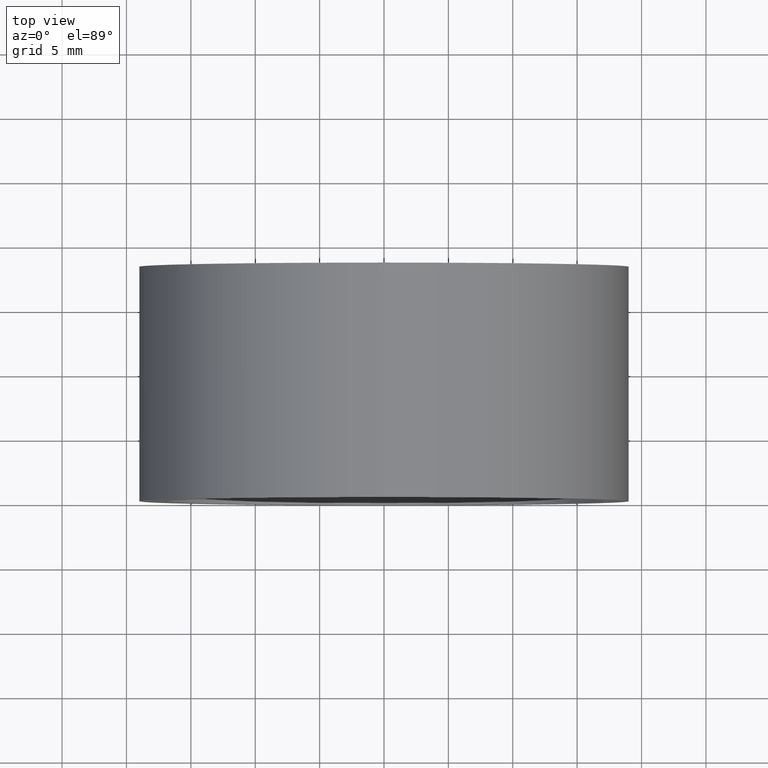
[diagram: clean part render]
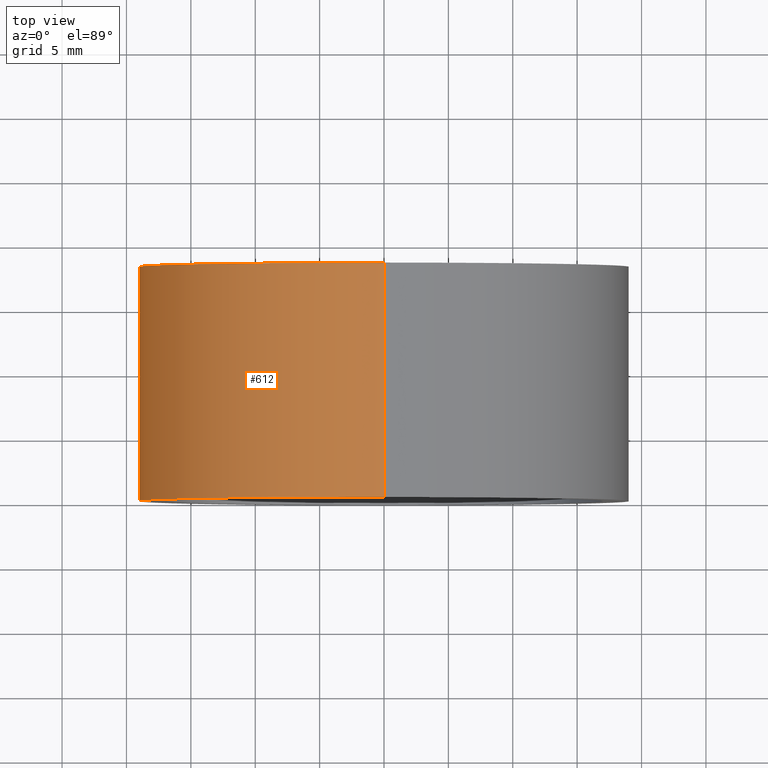
[diagram: same view with one face highlighted and labeled with its STEP entity id]
A machine part, top view. The second image highlights one B-rep face of the part: STEP entity #612.
In plain terms, the highlighted cylindrical surface (partial cylindrical patch) has radius 19.05 mm, axis along (-0, 1, -0).
Its self-contained STEP definition (entity closure, byte-faithful):
#20 = DIRECTION ( 'NONE',  ( 0.0000000000000000000, 0.0000000000000000000, 1.000000000000000000 ) ) ;
#23 = DIRECTION ( 'NONE',  ( -0.0000000000000000000, 1.000000000000000000, -0.0000000000000000000 ) ) ;
#30 = CARTESIAN_POINT ( 'NONE',  ( 0.0000000000000000000, 18.19999999999999600, 0.0000000000000000000 ) ) ;
#60 = EDGE_CURVE ( 'NONE', #423, #215, #588, .T. ) ;
#83 = AXIS2_PLACEMENT_3D ( 'NONE', #116, #23, #20 ) ;
#111 = ORIENTED_EDGE ( 'NONE', *, *, #166, .F. ) ;
#116 = CARTESIAN_POINT ( 'NONE',  ( 0.0000000000000000000, -2.775557561562891400E-014, 0.0000000000000000000 ) ) ;
#128 = ORIENTED_EDGE ( 'NONE', *, *, #134, .T. ) ;
#132 = CARTESIAN_POINT ( 'NONE',  ( 2.332952152375710400E-015, -2.775557561562891400E-014, -19.05000000000002200 ) ) ;
#134 = EDGE_CURVE ( 'NONE', #248, #423, #559, .T. ) ;
#166 = EDGE_CURVE ( 'NONE', #252, #215, #216, .T. ) ;
#171 = FACE_OUTER_BOUND ( 'NONE', #321, .T. ) ;
#198 = DIRECTION ( 'NONE',  ( -0.0000000000000000000, 1.000000000000000000, -0.0000000000000000000 ) ) ;
#215 = VERTEX_POINT ( 'NONE', #315 ) ;
#216 = CIRCLE ( 'NONE', #453, 19.05000000000002200 ) ;
#227 = DIRECTION ( 'NONE',  ( 0.0000000000000000000, 0.0000000000000000000, 1.000000000000000000 ) ) ;
#248 = VERTEX_POINT ( 'NONE', #132 ) ;
#252 = VERTEX_POINT ( 'NONE', #411 ) ;
#274 = DIRECTION ( 'NONE',  ( -0.0000000000000000000, 1.000000000000000000, -0.0000000000000000000 ) ) ;
#315 = CARTESIAN_POINT ( 'NONE',  ( 0.0000000000000000000, 18.19999999999999600, 19.05000000000002200 ) ) ;
#321 = EDGE_LOOP ( 'NONE', ( #370, #128, #414, #111 ) ) ;
#323 = LINE ( 'NONE', #531, #400 ) ;
#370 = ORIENTED_EDGE ( 'NONE', *, *, #485, .F. ) ;
#397 = AXIS2_PLACEMENT_3D ( 'NONE', #465, #418, #227 ) ;
#400 = VECTOR ( 'NONE', #198, 1000.000000000000000 ) ;
#411 = CARTESIAN_POINT ( 'NONE',  ( 2.332952152375710400E-015, 18.19999999999999600, -19.05000000000002200 ) ) ;
#414 = ORIENTED_EDGE ( 'NONE', *, *, #60, .T. ) ;
#418 = DIRECTION ( 'NONE',  ( -0.0000000000000000000, 1.000000000000000000, -0.0000000000000000000 ) ) ;
#423 = VERTEX_POINT ( 'NONE', #430 ) ;
#430 = CARTESIAN_POINT ( 'NONE',  ( 0.0000000000000000000, -2.775557561562891400E-014, 19.05000000000002200 ) ) ;
#443 = VECTOR ( 'NONE', #498, 1000.000000000000000 ) ;
#445 = CARTESIAN_POINT ( 'NONE',  ( 0.0000000000000000000, 161.3761669434274500, 19.05000000000002200 ) ) ;
#447 = CYLINDRICAL_SURFACE ( 'NONE', #397, 19.05000000000002200 ) ;
#453 = AXIS2_PLACEMENT_3D ( 'NONE', #30, #274, #508 ) ;
#465 = CARTESIAN_POINT ( 'NONE',  ( 0.0000000000000000000, 161.3761669434274500, 0.0000000000000000000 ) ) ;
#485 = EDGE_CURVE ( 'NONE', #248, #252, #323, .T. ) ;
#498 = DIRECTION ( 'NONE',  ( -0.0000000000000000000, 1.000000000000000000, -0.0000000000000000000 ) ) ;
#508 = DIRECTION ( 'NONE',  ( 0.0000000000000000000, 0.0000000000000000000, 1.000000000000000000 ) ) ;
#531 = CARTESIAN_POINT ( 'NONE',  ( 2.332952152375710400E-015, 161.3761669434274500, -19.05000000000002200 ) ) ;
#559 = CIRCLE ( 'NONE', #83, 19.05000000000002200 ) ;
#588 = LINE ( 'NONE', #445, #443 ) ;
#612 = ADVANCED_FACE ( 'NONE', ( #171 ), #447, .T. ) ;